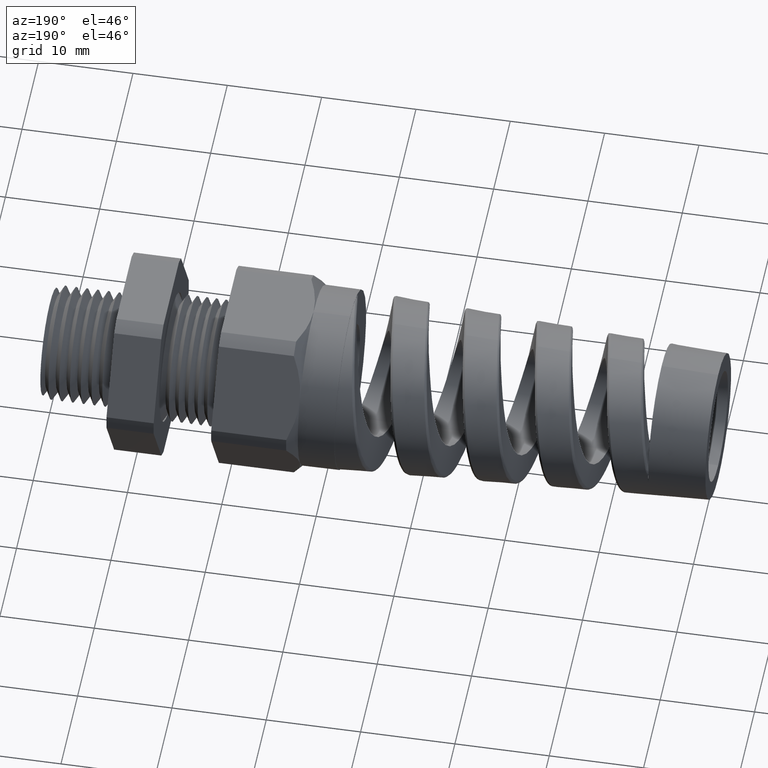
[diagram: clean part render]
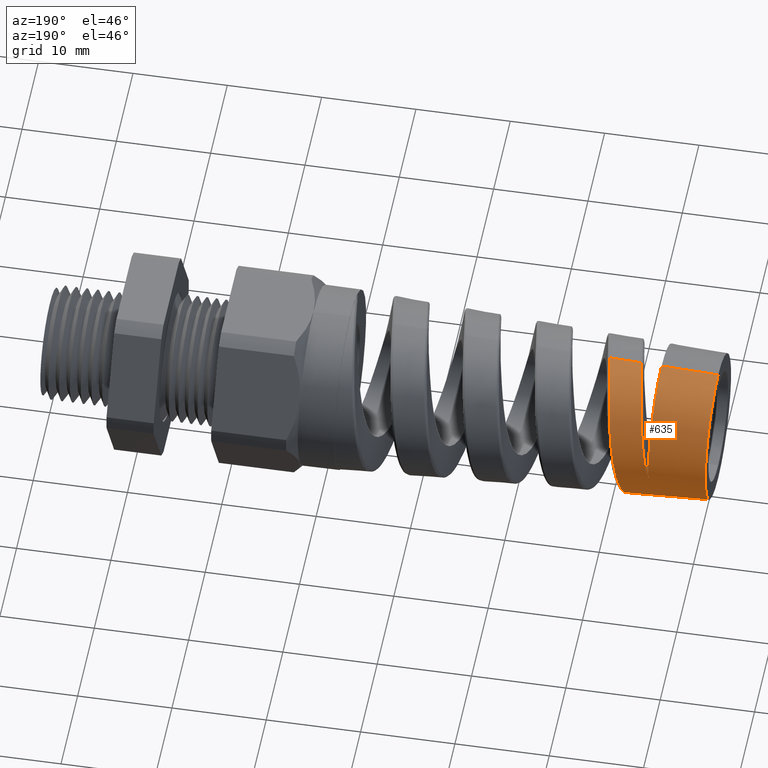
[diagram: same view with one face highlighted and labeled with its STEP entity id]
A machine part, auxiliary view. The second image highlights one B-rep face of the part: STEP entity #635.
In plain terms, the highlighted conical surface has half-angle 2.5 deg.
Its self-contained STEP definition (entity closure, byte-faithful):
#635 = ADVANCED_FACE ( 'NONE', ( #3452 ), #3451, .T. ) ;
#636 = EDGE_LOOP ( 'NONE', ( #700, #750, #753, #756, #675, #691, #694 ) ) ;
#673 = EDGE_CURVE ( 'NONE', #755, #674, #3581, .T. ) ;
#674 = VERTEX_POINT ( 'NONE', #3580 ) ;
#675 = ORIENTED_EDGE ( 'NONE', *, *, #689, .T. ) ;
#689 = EDGE_CURVE ( 'NONE', #674, #690, #3613, .T. ) ;
#690 = VERTEX_POINT ( 'NONE', #3609 ) ;
#691 = ORIENTED_EDGE ( 'NONE', *, *, #692, .T. ) ;
#692 = EDGE_CURVE ( 'NONE', #690, #693, #3607, .T. ) ;
#693 = VERTEX_POINT ( 'NONE', #3608 ) ;
#694 = ORIENTED_EDGE ( 'NONE', *, *, #695, .F. ) ;
#695 = EDGE_CURVE ( 'NONE', #703, #693, #3636, .T. ) ;
#700 = ORIENTED_EDGE ( 'NONE', *, *, #701, .F. ) ;
#701 = EDGE_CURVE ( 'NONE', #702, #703, #3702, .T. ) ;
#702 = VERTEX_POINT ( 'NONE', #3698 ) ;
#703 = VERTEX_POINT ( 'NONE', #3697 ) ;
#750 = ORIENTED_EDGE ( 'NONE', *, *, #751, .T. ) ;
#751 = EDGE_CURVE ( 'NONE', #702, #752, #3992, .T. ) ;
#752 = VERTEX_POINT ( 'NONE', #3988 ) ;
#753 = ORIENTED_EDGE ( 'NONE', *, *, #754, .T. ) ;
#754 = EDGE_CURVE ( 'NONE', #752, #755, #3986, .T. ) ;
#755 = VERTEX_POINT ( 'NONE', #3987 ) ;
#756 = ORIENTED_EDGE ( 'NONE', *, *, #673, .T. ) ;
#2409 = CARTESIAN_POINT ( 'NONE',  ( -2.497946090374638200, 0.1740830719803532500, 0.2657214735881316400 ) ) ;
#2413 = CARTESIAN_POINT ( 'NONE',  ( -2.513592048883227300, 0.2497519381580833600, 0.1952001346760313400 ) ) ;
#2415 = CARTESIAN_POINT ( 'NONE',  ( -2.489289796185576900, 0.1234726752245018100, 0.2930965869214466900 ) ) ;
#2417 = CARTESIAN_POINT ( 'NONE',  ( -2.494467116924733200, 0.1543672199265176100, 0.2778129630854566100 ) ) ;
#2420 = CARTESIAN_POINT ( 'NONE',  ( -2.525775846345526000, 0.2904574340136739700, 0.1256045670894702400 ) ) ;
#2423 = CARTESIAN_POINT ( 'NONE',  ( -2.499705522553486800, 0.1837097903632704800, 0.2590648901106000800 ) ) ;
#2424 = CARTESIAN_POINT ( 'NONE',  ( -2.492740062335928400, 0.1442423569323381400, 0.2832834576530983100 ) ) ;
#2426 = CARTESIAN_POINT ( 'NONE',  ( -2.470253626768084100, 5.744090867343138400E-013, 0.3186663100641775000 ) ) ;
#2427 = CARTESIAN_POINT ( 'NONE',  ( -2.484102972900499800, 0.09101410513021662700, 0.3049800092253101000 ) ) ;
#2434 = CARTESIAN_POINT ( 'NONE',  ( -2.477136343652171800, 0.04587757231950278400, 0.3158940260018099900 ) ) ;
#2440 = CARTESIAN_POINT ( 'NONE',  ( -2.515353500738516600, 0.2567229548428637300, 0.1858076624998123700 ) ) ;
#2441 = CARTESIAN_POINT ( 'NONE',  ( -2.508369703222089100, 0.2276185084267777800, 0.2218407063661671800 ) ) ;
#2447 = CARTESIAN_POINT ( 'NONE',  ( -2.531016449065728300, 0.3022561431407480600, 0.09295264406406779400 ) ) ;
#2452 = CARTESIAN_POINT ( 'NONE',  ( -2.487566625840769200, 0.1128278387285193100, 0.2974391978787630500 ) ) ;
#2454 = CARTESIAN_POINT ( 'NONE',  ( -2.529256479711340200, 0.2986910178195089100, 0.1040654121554427800 ) ) ;
#2462 = CARTESIAN_POINT ( 'NONE',  ( -2.482351692407918100, 0.07977420806954740900, 0.3081917829417338300 ) ) ;
#2463 = CARTESIAN_POINT ( 'NONE',  ( -2.473707889741227000, 0.02304744292255598400, 0.3185154936856746700 ) ) ;
#2464 = CARTESIAN_POINT ( 'NONE',  ( -2.520579680351035200, 0.2752832651116076700, 0.1565365923807780500 ) ) ;
#2466 = CARTESIAN_POINT ( 'NONE',  ( -2.524044791341552200, 0.2857729159710440400, 0.1360980785471828100 ) ) ;
#2467 = CARTESIAN_POINT ( 'NONE',  ( -2.504928858107203100, 0.2111058391374431000, 0.2378113843451535900 ) ) ;
#2469 = CARTESIAN_POINT ( 'NONE',  ( -2.518845666009565100, 0.2694781669091739800, 0.1664816187126528800 ) ) ;
#3053 = CARTESIAN_POINT ( 'NONE',  ( -2.536276266258483200, 0.3110357535661049700, 0.05928103308535766200 ) ) ;
#3447 = DIRECTION ( 'NONE',  ( 0.0000000000000000000, 0.0000000000000000000, -1.000000000000000000 ) ) ;
#3448 = DIRECTION ( 'NONE',  ( 1.000000000000000000, 0.0000000000000000000, 0.0000000000000000000 ) ) ;
#3449 = CARTESIAN_POINT ( 'NONE',  ( -1.180000000000000200, 0.0000000000000000000, 0.0000000000000000000 ) ) ;
#3450 = AXIS2_PLACEMENT_3D ( 'NONE', #3449, #3448, #3447 ) ;
#3451 = CONICAL_SURFACE ( 'NONE', #3450, 0.3749999999999998900, 0.04363323129985857000 ) ;
#3452 = FACE_OUTER_BOUND ( 'NONE', #636, .T. ) ;
#3577 = CARTESIAN_POINT ( 'NONE',  ( -2.539736186704792100, 0.3143553492457539200, 0.03653980860081944300 ) ) ;
#3578 = CARTESIAN_POINT ( 'NONE',  ( -2.546714552646435900, 0.3160253783261017200, -0.009495320324266204000 ) ) ;
#3579 = CARTESIAN_POINT ( 'NONE',  ( -2.550247851484337900, 0.3143171832036454900, -0.03289406004262161000 ) ) ;
#3580 = CARTESIAN_POINT ( 'NONE',  ( -2.470253626768084100, 5.744090867343138400E-013, 0.3186663100641775000 ) ) ;
#3581 = B_SPLINE_CURVE_WITH_KNOTS ( 'NONE', 3,
 ( #3583, #3579, #3578, #3577, #3053, #2447, #2454, #2420, #2466, #2464, #2469, #2440, #2413, #2441, #2467, #2423, #2409, #2417, #2424, #2415, #2452, #2427, #2462, #2434, #2463, #2426 ),
 .UNSPECIFIED., .F., .F.,
 ( 4, 2, 2, 2, 2, 2, 2, 2, 2, 2, 2, 2, 4 ),
 ( 8.075547694182775100E-016, 0.001792246608344234700, 0.003584493216687662000, 0.004480616520859371900, 0.005376739825031082700, 0.006272863129202793500, 0.007168986433374504300, 0.008961233041717928500, 0.009857356345889641000, 0.01075347965006135400, 0.01164960295423306400, 0.01254572625840477700, 0.01433797286674819500 ),
 .UNSPECIFIED. ) ;
#3583 = CARTESIAN_POINT ( 'NONE',  ( -2.553780000000000200, 0.3100385259295015400, -0.05579765966762231800 ) ) ;
#3606 = CARTESIAN_POINT ( 'NONE',  ( -2.338138265140190100, -5.454538344606280900E-013, 0.3244345913255504100 ) ) ;
#3607 = B_SPLINE_CURVE_WITH_KNOTS ( 'NONE', 3,
 ( #3606, #3679, #3678, #3677, #3676, #3675, #3674, #3673, #3672, #3671, #3670, #3669, #3668, #3667, #3666, #3665, #3664, #3663, #3662, #3661, #3660, #3659, #3658, #3657, #3656, #3655, #3654, #3653, #3652, #3651, #3650, #3649, #3648, #3647, #3646, #3645, #3644, #3643, #3642, #3641, #3640, #3639, #3638, #3637 ),
 .UNSPECIFIED., .F., .F.,
 ( 4, 2, 2, 2, 2, 2, 2, 2, 2, 2, 2, 2, 2, 2, 2, 2, 2, 2, 2, 2, 2, 4 ),
 ( 0.2003090440817773300, 0.2011169596424089200, 0.2019248752030405000, 0.2035407063243037100, 0.2051565374455668900, 0.2059644530061985100, 0.2067723685668300900, 0.2083881996880933000, 0.2100040308093564800, 0.2116198619306196800, 0.2124277774912512700, 0.2132356930518828600, 0.2148515241731460700, 0.2164673552944092700, 0.2172752708550408600, 0.2180831864156724500, 0.2196990175369356600, 0.2213148486581988400, 0.2229306797794620400, 0.2237385953400936300, 0.2245465109007252500, 0.2261623420219884300 ),
 .UNSPECIFIED. ) ;
#3608 = CARTESIAN_POINT ( 'NONE',  ( -2.488097425216155400, -4.934593896846606300E-015, -0.3178872329988652300 ) ) ;
#3609 = CARTESIAN_POINT ( 'NONE',  ( -2.338138265140190100, -5.454538344606280900E-013, 0.3244345913255504100 ) ) ;
#3610 = DIRECTION ( 'NONE',  ( 0.9990482215818576900, 5.341834311772764100E-018, 0.04361938736533633300 ) ) ;
#3611 = VECTOR ( 'NONE', #3610, 39.37007874015748100 ) ;
#3612 = CARTESIAN_POINT ( 'NONE',  ( -1.180000000000000200, 4.592425496802573000E-017, 0.3749999999999998900 ) ) ;
#3613 = LINE ( 'NONE', #3612, #3611 ) ;
#3633 = DIRECTION ( 'NONE',  ( 0.9990482215818576900, 0.0000000000000000000, -0.04361938736533633300 ) ) ;
#3634 = VECTOR ( 'NONE', #3633, 39.37007874015748100 ) ;
#3635 = CARTESIAN_POINT ( 'NONE',  ( -1.180000000000000200, 0.0000000000000000000, -0.3749999999999998900 ) ) ;
#3636 = LINE ( 'NONE', #3635, #3634 ) ;
#3637 = CARTESIAN_POINT ( 'NONE',  ( -2.488097425216155400, -4.934593896846606300E-015, -0.3178872329988652300 ) ) ;
#3638 = CARTESIAN_POINT ( 'NONE',  ( -2.484918886058199700, 0.02116685908745418600, -0.3180260110155736000 ) ) ;
#3639 = CARTESIAN_POINT ( 'NONE',  ( -2.481770736214829600, 0.04215905813484925600, -0.3160507800946835700 ) ) ;
#3640 = CARTESIAN_POINT ( 'NONE',  ( -2.477066216652771000, 0.07295943553451268700, -0.3100726186841293900 ) ) ;
#3641 = CARTESIAN_POINT ( 'NONE',  ( -2.475497598490406800, 0.08313442872014183100, -0.3075739025363085100 ) ) ;
#3642 = CARTESIAN_POINT ( 'NONE',  ( -2.472344065725155200, 0.1032953552048006700, -0.3015473697079941700 ) ) ;
#3643 = CARTESIAN_POINT ( 'NONE',  ( -2.470750542625564300, 0.1133335878850674900, -0.2979951632104861900 ) ) ;
#3644 = CARTESIAN_POINT ( 'NONE',  ( -2.466011197592818500, 0.1425982776455497200, -0.2859666970630520000 ) ) ;
#3645 = CARTESIAN_POINT ( 'NONE',  ( -2.462894235014850600, 0.1610716105573195800, -0.2761310365794552600 ) ) ;
#3646 = CARTESIAN_POINT ( 'NONE',  ( -2.456624697827491500, 0.1959712479235032600, -0.2529078754523093100 ) ) ;
#3647 = CARTESIAN_POINT ( 'NONE',  ( -2.453442892063937700, 0.2125220411230662700, -0.2393554570701868500 ) ) ;
#3648 = CARTESIAN_POINT ( 'NONE',  ( -2.447174491560783100, 0.2421985891745508400, -0.2096935878081169800 ) ) ;
#3649 = CARTESIAN_POINT ( 'NONE',  ( -2.444065853636454600, 0.2554787134163390400, -0.1935261606330781800 ) ) ;
#3650 = CARTESIAN_POINT ( 'NONE',  ( -2.439353136842605400, 0.2730291324241756500, -0.1672598608927149400 ) ) ;
#3651 = CARTESIAN_POINT ( 'NONE',  ( -2.437766412766681200, 0.2785019922049029000, -0.1581200071942446600 ) ) ;
#3652 = CARTESIAN_POINT ( 'NONE',  ( -2.434624269215745600, 0.2884209804786133600, -0.1395223184820471000 ) ) ;
#3653 = CARTESIAN_POINT ( 'NONE',  ( -2.433063163876541000, 0.2928924346492918200, -0.1300354101974590700 ) ) ;
#3654 = CARTESIAN_POINT ( 'NONE',  ( -2.428386729648296200, 0.3048739012898748500, -0.1010261121240429600 ) ) ;
#3655 = CARTESIAN_POINT ( 'NONE',  ( -2.425278663429726800, 0.3109647778786888100, -0.08096034539309535100 ) ) ;
#3656 = CARTESIAN_POINT ( 'NONE',  ( -2.418964438354069400, 0.3191918000328881100, -0.03933353728278822500 ) ) ;
#3657 = CARTESIAN_POINT ( 'NONE',  ( -2.415859711501540600, 0.3211929758150920400, -0.01844722397724617500 ) ) ;
#3658 = CARTESIAN_POINT ( 'NONE',  ( -2.411195730174126300, 0.3211546259424988300, 0.01293805501158396000 ) ) ;
#3659 = CARTESIAN_POINT ( 'NONE',  ( -2.409639705766139200, 0.3206318803922413300, 0.02341125555363005000 ) ) ;
#3660 = CARTESIAN_POINT ( 'NONE',  ( -2.406509936876307900, 0.3185455169480086400, 0.04437877685748919900 ) ) ;
#3661 = CARTESIAN_POINT ( 'NONE',  ( -2.404929670010092800, 0.3169690118190411400, 0.05491551276630411000 ) ) ;
#3662 = CARTESIAN_POINT ( 'NONE',  ( -2.400238158571110300, 0.3107577204953675400, 0.08590340700794779600 ) ) ;
#3663 = CARTESIAN_POINT ( 'NONE',  ( -2.397149334639915100, 0.3046534294280964200, 0.1059190201801628300 ) ) ;
#3664 = CARTESIAN_POINT ( 'NONE',  ( -2.390931526436495000, 0.2885809340976393500, 0.1446665896884261600 ) ) ;
#3665 = CARTESIAN_POINT ( 'NONE',  ( -2.387777185834901900, 0.2784856635265695600, 0.1635289995759983400 ) ) ;
#3666 = CARTESIAN_POINT ( 'NONE',  ( -2.381566623884911100, 0.2551685932510430200, 0.1983931258745641200 ) ) ;
#3667 = CARTESIAN_POINT ( 'NONE',  ( -2.378484829522380800, 0.2419040546536109200, 0.2145796795031529300 ) ) ;
#3668 = CARTESIAN_POINT ( 'NONE',  ( -2.373810760929326400, 0.2195736748624434700, 0.2369558050948711000 ) ) ;
#3669 = CARTESIAN_POINT ( 'NONE',  ( -2.372237908672716800, 0.2116862428714502100, 0.2441185735433379900 ) ) ;
#3670 = CARTESIAN_POINT ( 'NONE',  ( -2.369124781829400600, 0.1954126378258258200, 0.2575007839340519600 ) ) ;
#3671 = CARTESIAN_POINT ( 'NONE',  ( -2.367577643264010300, 0.1869964078328509600, 0.2637560080481257100 ) ) ;
#3672 = CARTESIAN_POINT ( 'NONE',  ( -2.362942227855250500, 0.1609296768847791600, 0.2812396503983450900 ) ) ;
#3673 = CARTESIAN_POINT ( 'NONE',  ( -2.359860123891675000, 0.1424657124727361800, 0.2911994912950139900 ) ) ;
#3674 = CARTESIAN_POINT ( 'NONE',  ( -2.353600249507376200, 0.1033074967718421600, 0.3075680154052539700 ) ) ;
#3675 = CARTESIAN_POINT ( 'NONE',  ( -2.350523805850804700, 0.08325222080502070500, 0.3137102946079902700 ) ) ;
#3676 = CARTESIAN_POINT ( 'NONE',  ( -2.345900266268706100, 0.05249746702161806700, 0.3199867231912819100 ) ) ;
#3677 = CARTESIAN_POINT ( 'NONE',  ( -2.344357711710161500, 0.04213309280646753600, 0.3215858753822298800 ) ) ;
#3678 = CARTESIAN_POINT ( 'NONE',  ( -2.341255341552660200, 0.02117629699727257800, 0.3237778140584228200 ) ) ;
#3679 = CARTESIAN_POINT ( 'NONE',  ( -2.339688783236349300, 0.01053784608712047100, 0.3243668942434930200 ) ) ;
#3697 = CARTESIAN_POINT ( 'NONE',  ( -2.790000472440945100, 0.0000000000000000000, -0.3047058612894849000 ) ) ;
#3698 = CARTESIAN_POINT ( 'NONE',  ( -2.790000472440945100, 3.893430502019871600E-017, 0.3047058612894849000 ) ) ;
#3699 = DIRECTION ( 'NONE',  ( 0.0000000000000000000, 0.0000000000000000000, 1.000000000000000000 ) ) ;
#3700 = DIRECTION ( 'NONE',  ( -1.000000000000000000, 0.0000000000000000000, 0.0000000000000000000 ) ) ;
#3701 = AXIS2_PLACEMENT_3D ( 'NONE', #3707, #3700, #3699 ) ;
#3702 = CIRCLE ( 'NONE', #3701, 0.3047058612894849000 ) ;
#3707 = CARTESIAN_POINT ( 'NONE',  ( -2.790000472440945100, 0.0000000000000000000, 0.0000000000000000000 ) ) ;
#3983 = DIRECTION ( 'NONE',  ( -1.000000000000000000, 0.0000000000000000000, 0.0000000000000000000 ) ) ;
#3984 = CARTESIAN_POINT ( 'NONE',  ( -2.553780000000000200, 0.0000000000000000000, 0.0000000000000000000 ) ) ;
#3985 = AXIS2_PLACEMENT_3D ( 'NONE', #3984, #3983, #4064 ) ;
#3986 = CIRCLE ( 'NONE', #3985, 0.3150194698505507400 ) ;
#3987 = CARTESIAN_POINT ( 'NONE',  ( -2.553780000000000200, 0.3100385259295015400, -0.05579765966762231800 ) ) ;
#3988 = CARTESIAN_POINT ( 'NONE',  ( -2.553780000000000200, 3.857875854222993000E-017, 0.3150194698511437100 ) ) ;
#3989 = DIRECTION ( 'NONE',  ( 0.9990482215818576900, 5.341834311772764100E-018, 0.04361938736533633300 ) ) ;
#3990 = VECTOR ( 'NONE', #3989, 39.37007874015748100 ) ;
#3991 = CARTESIAN_POINT ( 'NONE',  ( -1.180000000000000200, 4.592425496802573000E-017, 0.3749999999999998900 ) ) ;
#3992 = LINE ( 'NONE', #3991, #3990 ) ;
#4064 = DIRECTION ( 'NONE',  ( 0.0000000000000000000, 0.0000000000000000000, 1.000000000000000000 ) ) ;